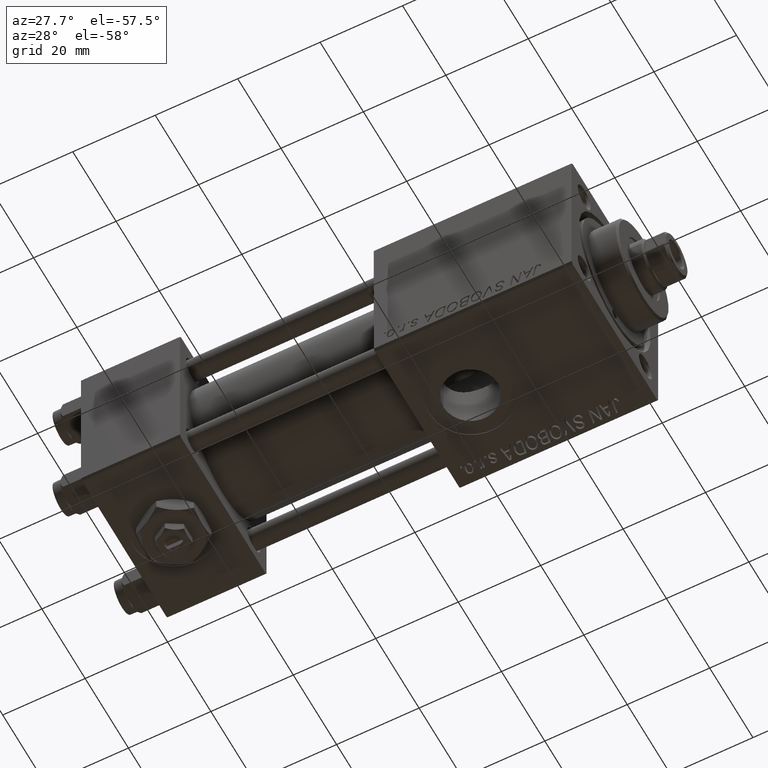
[diagram: clean part render]
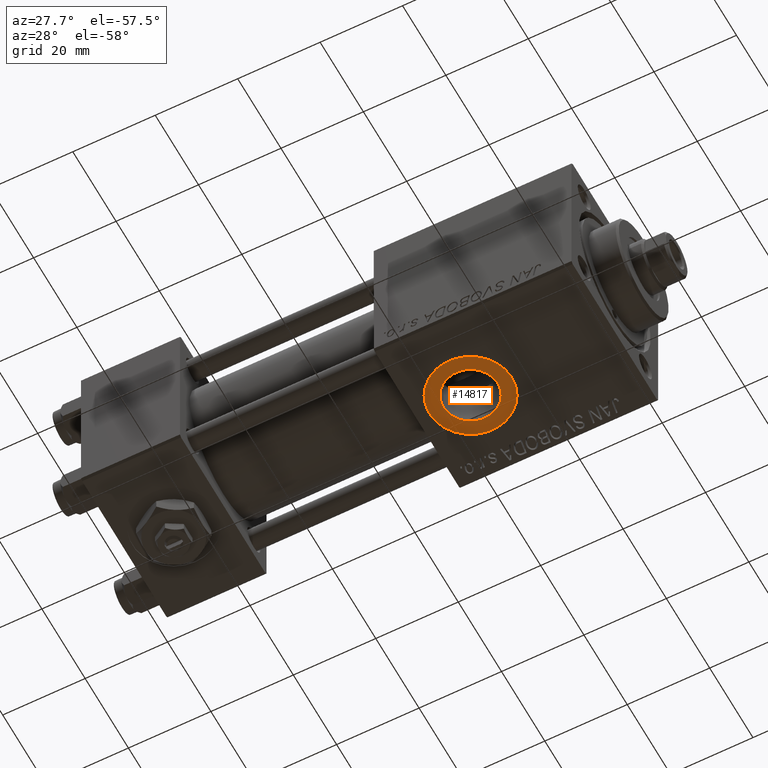
[diagram: same view with one face highlighted and labeled with its STEP entity id]
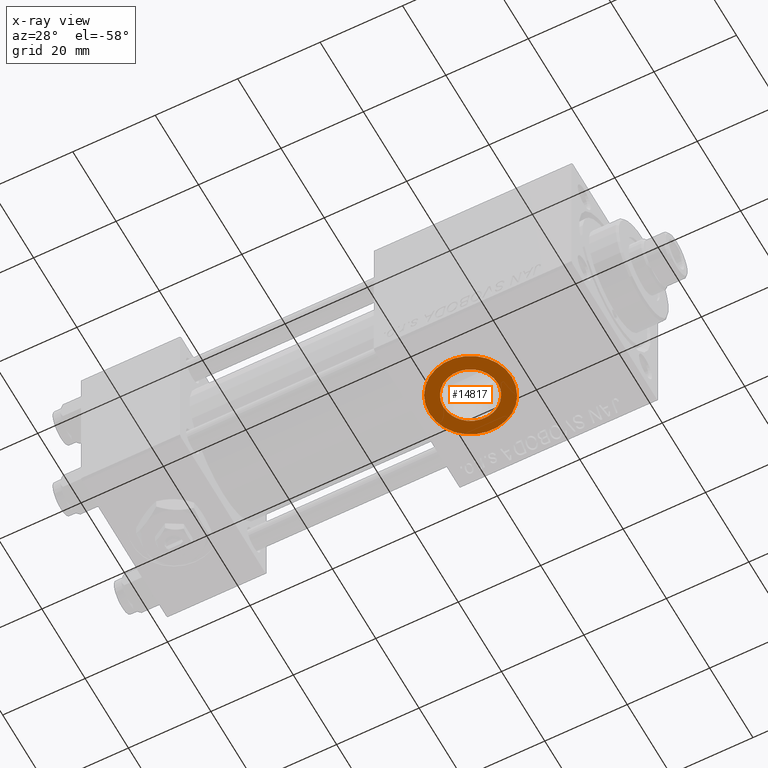
[diagram: x-ray of the same camera — body ghosted, the highlighted face saturated]
A machine part, auxiliary view. The second image highlights one B-rep face of the part: STEP entity #14817.
The next image is the same camera in x-ray: the body ghosted, the highlighted face saturated — about 0% of this face is hidden behind the body in this view.
In plain terms, the highlighted planar face has unit normal (0, 0, -1).
Its self-contained STEP definition (entity closure, byte-faithful):
#2863 = EDGE_LOOP ( 'NONE', ( #33636, #39979 ) ) ;
#3382 = EDGE_LOOP ( 'NONE', ( #26459, #51179 ) ) ;
#6095 = FACE_BOUND ( 'NONE', #3382, .T. ) ;
#6173 = DIRECTION ( 'NONE',  ( 0.000000000000000000, 0.000000000000000000, -1.000000000000000000 ) ) ;
#6781 = AXIS2_PLACEMENT_3D ( 'NONE', #12548, #7811, #16518 ) ;
#7297 = CARTESIAN_POINT ( 'NONE',  ( 84.00000000000000000, 0.000000000000000000, -19.80000000000000071 ) ) ;
#7811 = DIRECTION ( 'NONE',  ( 0.000000000000000000, 0.000000000000000000, -1.000000000000000000 ) ) ;
#12548 = CARTESIAN_POINT ( 'NONE',  ( 84.00000000000000000, 0.000000000000000000, -19.80000000000000071 ) ) ;
#14114 = CARTESIAN_POINT ( 'NONE',  ( 84.00000000000000000, 0.000000000000000000, -19.80000000000000071 ) ) ;
#14817 = ADVANCED_FACE ( 'NONE', ( #6095, #26931 ), #30387, .T. ) ;
#15236 = DIRECTION ( 'NONE',  ( 0.000000000000000000, 0.000000000000000000, -1.000000000000000000 ) ) ;
#16518 = DIRECTION ( 'NONE',  ( -1.000000000000000000, 0.000000000000000000, 0.000000000000000000 ) ) ;
#17159 = CARTESIAN_POINT ( 'NONE',  ( 77.42000000000000171, 0.000000000000000000, -19.80000000000000071 ) ) ;
#17805 = AXIS2_PLACEMENT_3D ( 'NONE', #14114, #6173, #30213 ) ;
#18016 = VERTEX_POINT ( 'NONE', #31364 ) ;
#18563 = AXIS2_PLACEMENT_3D ( 'NONE', #32381, #52238, #24441 ) ;
#19371 = AXIS2_PLACEMENT_3D ( 'NONE', #7297, #15236, #23665 ) ;
#23665 = DIRECTION ( 'NONE',  ( -1.000000000000000000, 0.000000000000000000, 0.000000000000000000 ) ) ;
#24441 = DIRECTION ( 'NONE',  ( -1.000000000000000000, 0.000000000000000000, 0.000000000000000000 ) ) ;
#26166 = CIRCLE ( 'NONE', #6781, 6.580000000000002736 ) ;
#26459 = ORIENTED_EDGE ( 'NONE', *, *, #34447, .F. ) ;
#26931 = FACE_OUTER_BOUND ( 'NONE', #2863, .T. ) ;
#29522 = VERTEX_POINT ( 'NONE', #33561 ) ;
#30213 = DIRECTION ( 'NONE',  ( -1.000000000000000000, 0.000000000000000000, 0.000000000000000000 ) ) ;
#30387 = PLANE ( 'NONE',  #35752 ) ;
#31364 = CARTESIAN_POINT ( 'NONE',  ( 74.00000000000000000, 0.000000000000000000, -19.80000000000000071 ) ) ;
#32381 = CARTESIAN_POINT ( 'NONE',  ( 84.00000000000000000, 0.000000000000000000, -19.80000000000000071 ) ) ;
#33561 = CARTESIAN_POINT ( 'NONE',  ( 94.00000000000001421, 1.224646799147354440E-15, -19.80000000000000071 ) ) ;
#33636 = ORIENTED_EDGE ( 'NONE', *, *, #50916, .T. ) ;
#34270 = VERTEX_POINT ( 'NONE', #39883 ) ;
#34447 = EDGE_CURVE ( 'NONE', #45971, #34270, #46397, .T. ) ;
#34583 = EDGE_CURVE ( 'NONE', #29522, #18016, #52343, .T. ) ;
#34643 = CARTESIAN_POINT ( 'NONE',  ( 84.00000000000000000, 0.000000000000000000, -19.80000000000000071 ) ) ;
#35752 = AXIS2_PLACEMENT_3D ( 'NONE', #34643, #50761, #44637 ) ;
#39883 = CARTESIAN_POINT ( 'NONE',  ( 90.58000000000001251, 8.058175938389587461E-16, -19.80000000000000071 ) ) ;
#39979 = ORIENTED_EDGE ( 'NONE', *, *, #34583, .T. ) ;
#44637 = DIRECTION ( 'NONE',  ( -1.000000000000000000, 0.000000000000000000, -0.000000000000000000 ) ) ;
#45971 = VERTEX_POINT ( 'NONE', #17159 ) ;
#46397 = CIRCLE ( 'NONE', #19371, 6.580000000000002736 ) ;
#48351 = EDGE_CURVE ( 'NONE', #34270, #45971, #26166, .T. ) ;
#50626 = CIRCLE ( 'NONE', #17805, 10.00000000000000888 ) ;
#50761 = DIRECTION ( 'NONE',  ( 0.000000000000000000, 0.000000000000000000, -1.000000000000000000 ) ) ;
#50916 = EDGE_CURVE ( 'NONE', #18016, #29522, #50626, .T. ) ;
#51179 = ORIENTED_EDGE ( 'NONE', *, *, #48351, .F. ) ;
#52238 = DIRECTION ( 'NONE',  ( 0.000000000000000000, 0.000000000000000000, -1.000000000000000000 ) ) ;
#52343 = CIRCLE ( 'NONE', #18563, 10.00000000000000888 ) ;